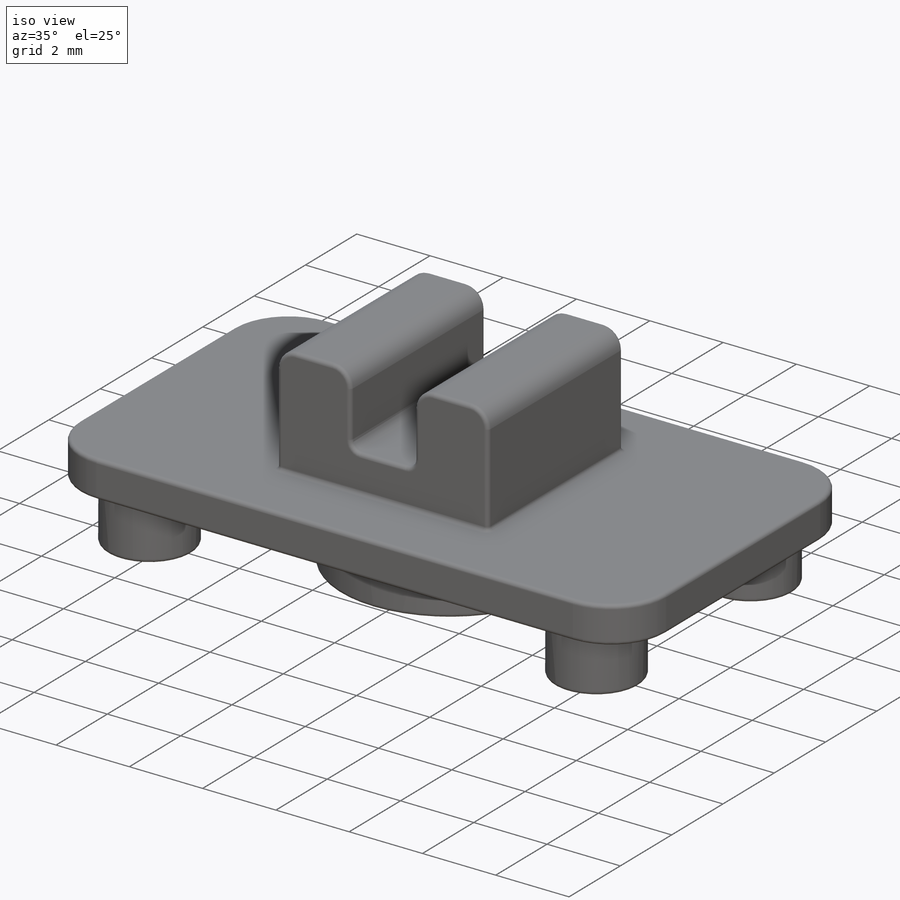
[diagram: iso view]
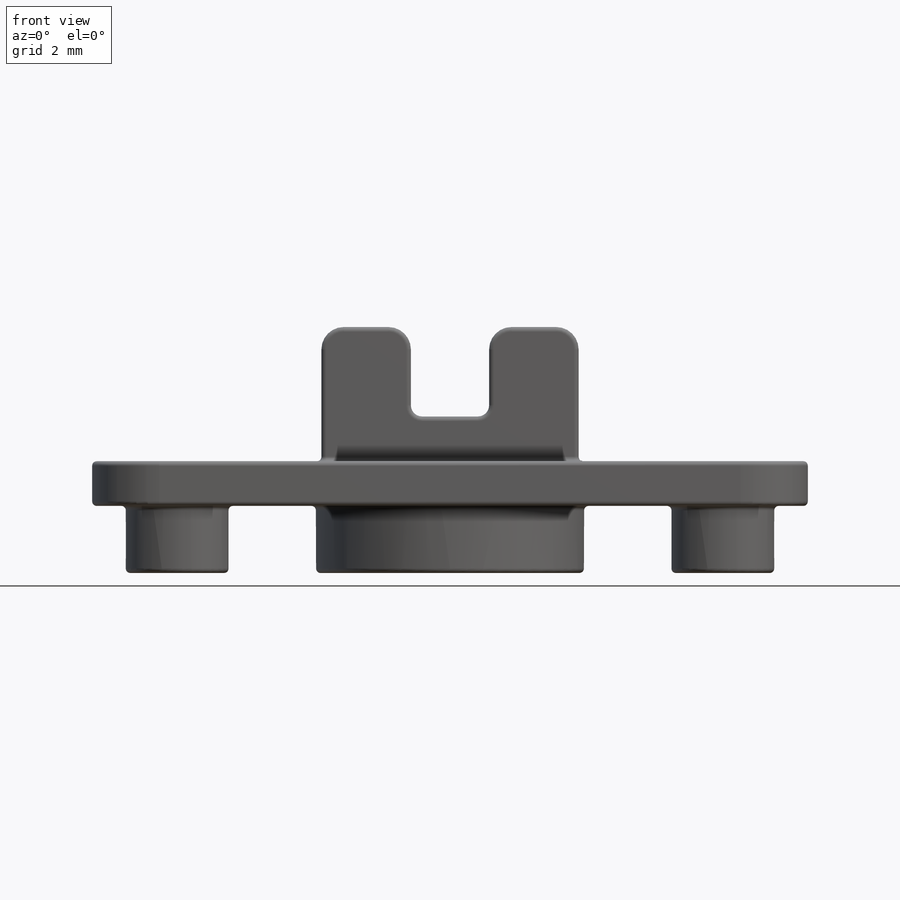
[diagram: front view]
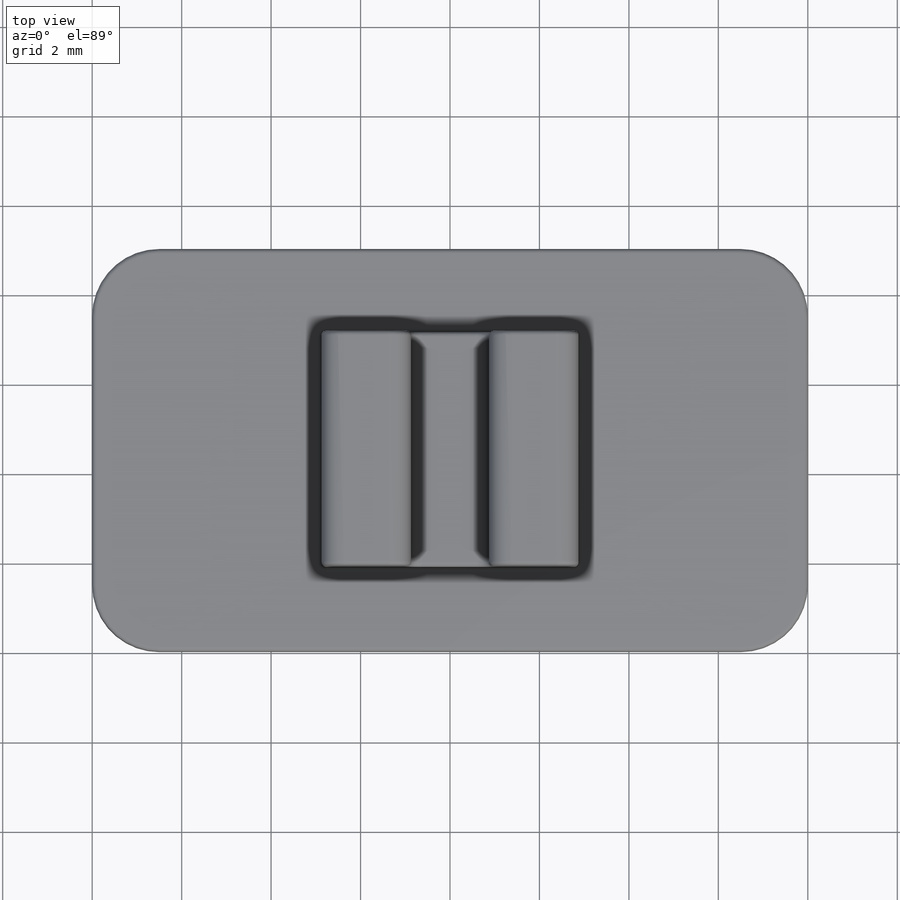
[diagram: top view]
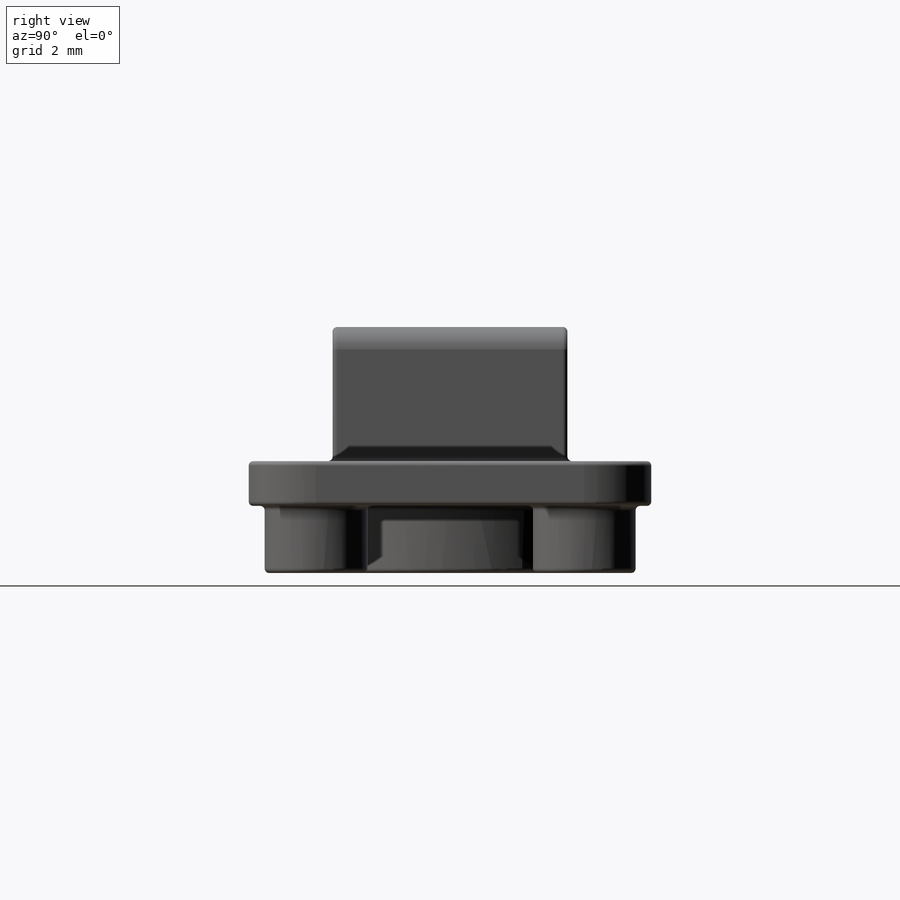
[diagram: right view]
SOLIDWORKS PART (.sldprt)
format: sldprt  version: not decoded by parser v0  size: 523,264 bytes
history: native  units: mm
features: fillet x6, sketch x4, extrude x4, material x1 (+11 scaffold rows collapsed)
feature tree (26):
  scaffold x11  (default folders/planes/origin — collapsed)
  material  "Material <not specified>"
  sketch  "Sketch2"  dims[c1.D1=~8.952699mm c1.D2=~16.115293mm c2.D1=9.0mm c2.D2=16.0mm]
  extrude  "Boss-Extrude1"  Depth=1mm
  sketch  "Sketch3"  dims[D1=2.3mm D2=2.3mm D3=2.3mm D4=2.3mm D13=6.0mm D14=3.0mm D5=1.5mm D6=1.9mm D7=1.5mm D8=1.9mm D9=1.5mm D10=1.9mm D11=1.5mm D12=1.9mm D15=4.5mm D16=8.0mm]
  extrude  "Boss-Extrude2"  Depth=1.5mm
  sketch  "Sketch6"  dims[c1.D1=~2.34736mm c1.D2=~7.073859mm c2.D1=5.25mm c2.D2=5.75mm c2.D3=1.875mm c2.D4=5.125mm]
  extrude  "Boss-Extrude3"  Depth=1mm
  sketch  "Sketch7"  dims[c1.D1=5.25mm c1.D2=~2.075998mm c2.D1=5.25mm c2.D2=~1.960678mm c3.D1=2.0mm c3.D2=2.0mm]
  extrude  "Boss-Extrude4"  Depth=2mm
  fillet  "Fillet1"  Radius=0.5mm
  fillet  "Fillet2"  Radius=0.25mm
  fillet  "Fillet3"  Radius=1.5mm
  fillet  "Fillet4"  Radius=0.1mm
  fillet  "Fillet5"  Radius=0.1mm
  fillet  "Fillet6"  Radius=0.1mm
decode coverage: 14 of 14 modeling features carry decoded parameters
note: ~ marks probable driven/reference dimensions
note: suppression state not decoded; provenance and decode notes live in map.json
